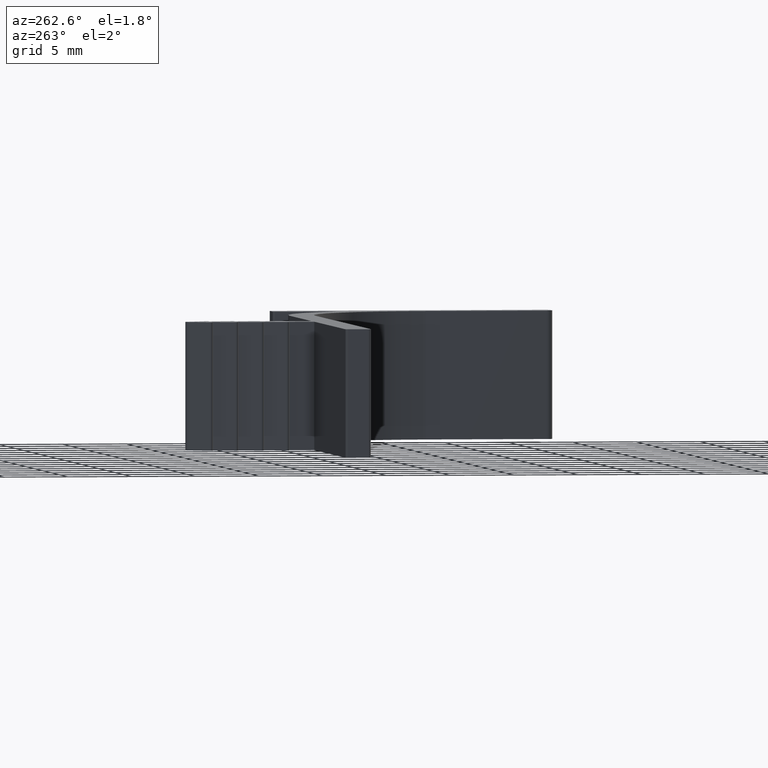
[diagram: clean part render]
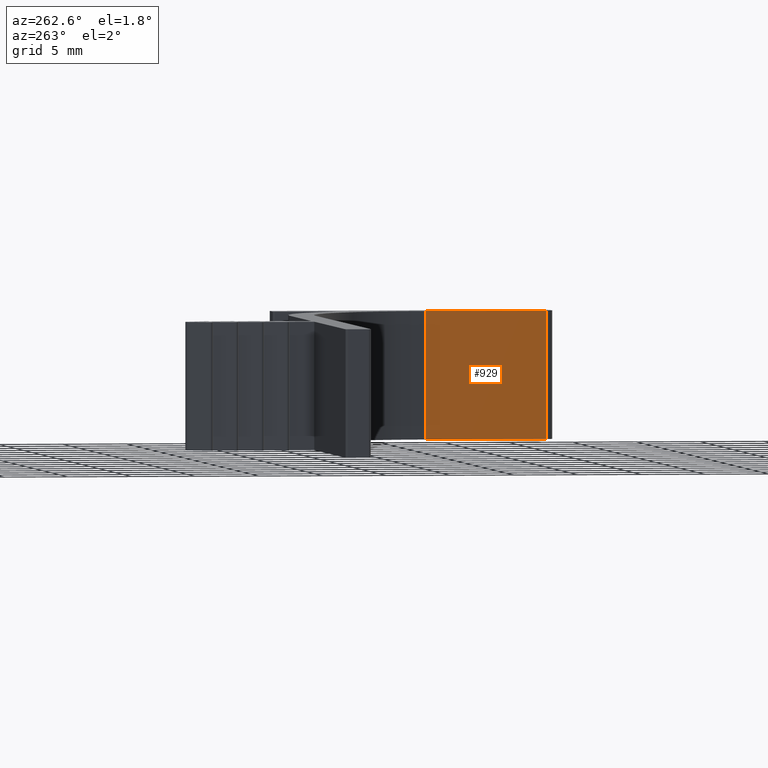
[diagram: same view with one face highlighted and labeled with its STEP entity id]
A machine part, auxiliary view. The second image highlights one B-rep face of the part: STEP entity #929.
In plain terms, the highlighted planar face has unit normal (-1, 0, 0).
Its self-contained STEP definition (entity closure, byte-faithful):
#41=PLANE('',#1014);
#88=FACE_OUTER_BOUND('',#135,.T.);
#135=EDGE_LOOP('',(#855,#856,#857,#858));
#145=LINE('',#1310,#244);
#195=LINE('',#1469,#294);
#201=LINE('',#1483,#300);
#236=LINE('',#1553,#335);
#244=VECTOR('',#1040,9.49999999999999);
#294=VECTOR('',#1156,9.49999999999999);
#300=VECTOR('',#1172,10.);
#335=VECTOR('',#1277,10.);
#381=VERTEX_POINT('',#1307);
#382=VERTEX_POINT('',#1309);
#457=VERTEX_POINT('',#1466);
#458=VERTEX_POINT('',#1468);
#473=EDGE_CURVE('',#382,#381,#145,.T.);
#553=EDGE_CURVE('',#458,#457,#195,.T.);
#561=EDGE_CURVE('',#458,#381,#201,.T.);
#596=EDGE_CURVE('',#382,#457,#236,.T.);
#855=ORIENTED_EDGE('',*,*,#561,.F.);
#856=ORIENTED_EDGE('',*,*,#553,.T.);
#857=ORIENTED_EDGE('',*,*,#596,.F.);
#858=ORIENTED_EDGE('',*,*,#473,.T.);
#929=ADVANCED_FACE('',(#88),#41,.T.);
#1014=AXIS2_PLACEMENT_3D('',#1554,#1278,#1279);
#1040=DIRECTION('',(0.,-1.,0.));
#1156=DIRECTION('',(0.,1.,0.));
#1172=DIRECTION('',(0.,0.,-1.));
#1277=DIRECTION('',(0.,0.,1.));
#1278=DIRECTION('center_axis',(-1.,0.,0.));
#1279=DIRECTION('ref_axis',(0.,0.,1.));
#1307=CARTESIAN_POINT('',(21.,-15.5,-5.));
#1309=CARTESIAN_POINT('',(21.,-6.00000000000001,-5.));
#1310=CARTESIAN_POINT('',(21.,3.99999999999999,-5.));
#1466=CARTESIAN_POINT('',(21.,-6.00000000000001,5.));
#1468=CARTESIAN_POINT('',(21.,-15.5,5.));
#1469=CARTESIAN_POINT('',(21.,3.99999999999999,5.));
#1483=CARTESIAN_POINT('',(21.,-15.5,0.));
#1553=CARTESIAN_POINT('',(21.,-6.00000000000001,0.));
#1554=CARTESIAN_POINT('Origin',(21.,-16.,0.));